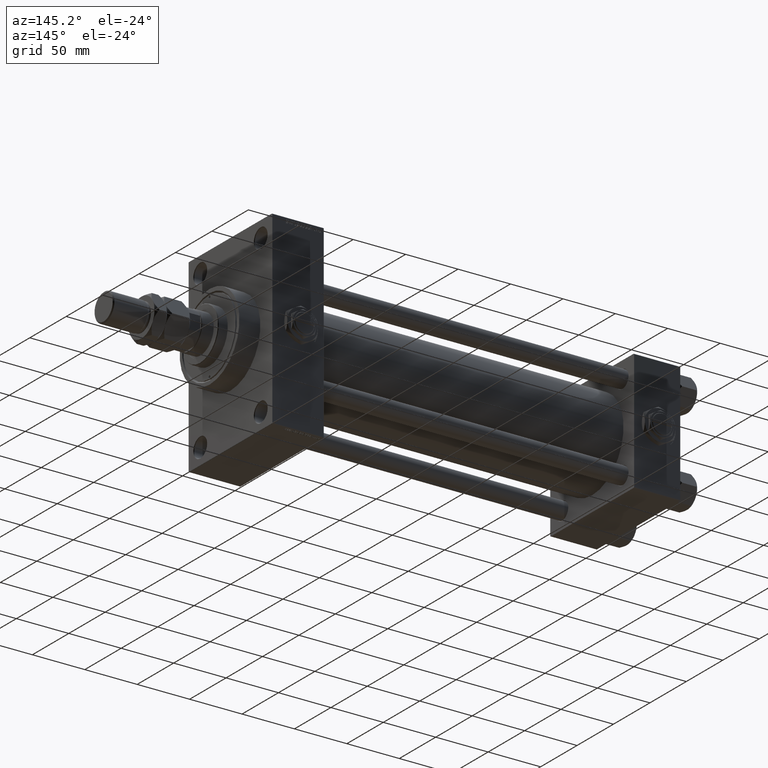
[diagram: clean part render]
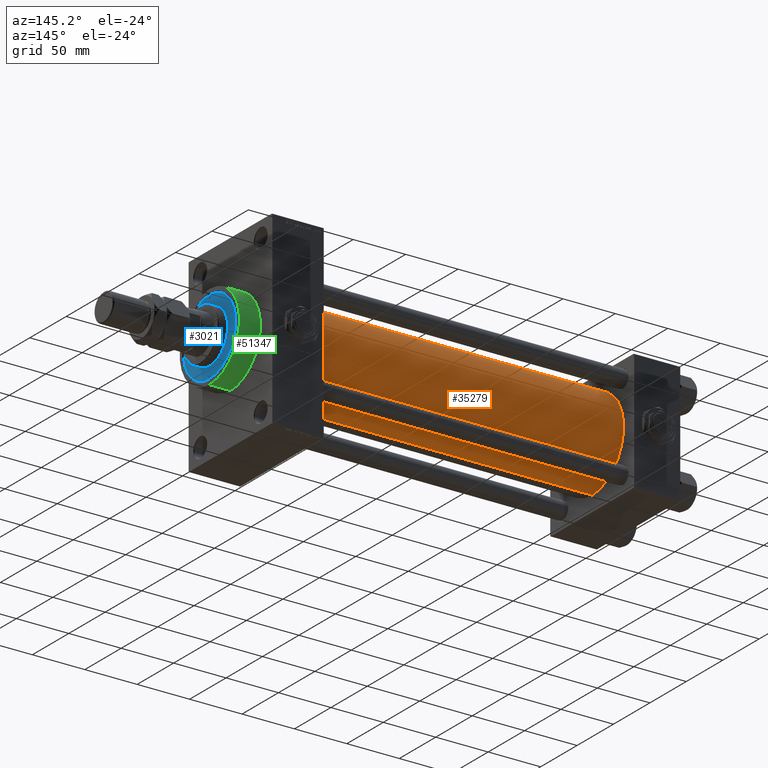
[diagram: same view with three faces highlighted in distinct colors, each labeled with its STEP entity id]
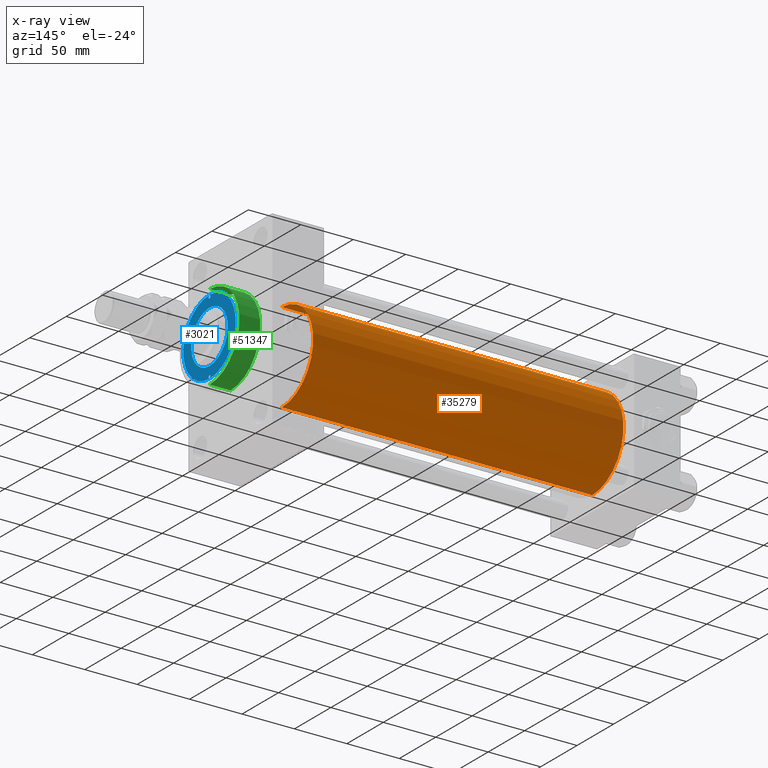
[diagram: x-ray of the same camera — body ghosted, the three highlighted faces saturated]
A machine part, auxiliary view with three faces highlighted in distinct colors.
The next image is the same camera in x-ray (body ghosted, the three faces saturated) — at least one of them is partly hidden behind the body in this view.
Their STEP definitions:

[orange] entity #35279 — the highlighted cylindrical surface (partial cylindrical patch) has radius 43 mm, axis along (-1, -0, -0).
#2613 = CARTESIAN_POINT ( 'NONE',  ( 43.99999999999998579, 2.663896022368408223E-15, -43.00000000000000000 ) ) ;
#3057 = CIRCLE ( 'NONE', #43057, 43.00000000000000000 ) ;
#5343 = AXIS2_PLACEMENT_3D ( 'NONE', #9457, #41325, #37419 ) ;
#5698 = DIRECTION ( 'NONE',  ( 1.000000000000000000, -0.000000000000000000, 0.000000000000000000 ) ) ;
#7799 = CIRCLE ( 'NONE', #14484, 43.00000000000000000 ) ;
#7990 = ORIENTED_EDGE ( 'NONE', *, *, #22632, .T. ) ;
#9457 = CARTESIAN_POINT ( 'NONE',  ( 339.9999999999999432, -2.602085213965210642E-15, 0.000000000000000000 ) ) ;
#10236 = EDGE_CURVE ( 'NONE', #44951, #35347, #7799, .T. ) ;
#12001 = EDGE_CURVE ( 'NONE', #35347, #50280, #26509, .T. ) ;
#12636 = EDGE_LOOP ( 'NONE', ( #24867, #13989, #7990, #48971 ) ) ;
#13118 = CYLINDRICAL_SURFACE ( 'NONE', #5343, 43.00000000000000000 ) ;
#13267 = CARTESIAN_POINT ( 'NONE',  ( 43.99999999999998579, -2.602085213965210642E-15, 0.000000000000000000 ) ) ;
#13989 = ORIENTED_EDGE ( 'NONE', *, *, #51068, .T. ) ;
#14484 = AXIS2_PLACEMENT_3D ( 'NONE', #30294, #45709, #49594 ) ;
#16563 = VERTEX_POINT ( 'NONE', #2613 ) ;
#18656 = DIRECTION ( 'NONE',  ( -1.000000000000000000, -0.000000000000000000, -0.000000000000000000 ) ) ;
#19999 = VECTOR ( 'NONE', #25579, 1000.000000000000000 ) ;
#21636 = DIRECTION ( 'NONE',  ( 0.000000000000000000, 0.000000000000000000, 1.000000000000000000 ) ) ;
#22632 = EDGE_CURVE ( 'NONE', #16563, #50280, #3057, .T. ) ;
#23951 = CARTESIAN_POINT ( 'NONE',  ( 43.99999999999998579, -2.602085213965210642E-15, 43.00000000000000000 ) ) ;
#24867 = ORIENTED_EDGE ( 'NONE', *, *, #10236, .F. ) ;
#25579 = DIRECTION ( 'NONE',  ( -1.000000000000000000, -0.000000000000000000, -0.000000000000000000 ) ) ;
#26509 = LINE ( 'NONE', #37498, #46942 ) ;
#29254 = LINE ( 'NONE', #41246, #19999 ) ;
#30294 = CARTESIAN_POINT ( 'NONE',  ( 339.9999999999999432, -2.602085213965210642E-15, 0.000000000000000000 ) ) ;
#32975 = FACE_OUTER_BOUND ( 'NONE', #12636, .T. ) ;
#35279 = ADVANCED_FACE ( 'NONE', ( #32975 ), #13118, .T. ) ;
#35347 = VERTEX_POINT ( 'NONE', #41592 ) ;
#37419 = DIRECTION ( 'NONE',  ( 0.000000000000000000, 0.000000000000000000, 1.000000000000000000 ) ) ;
#37498 = CARTESIAN_POINT ( 'NONE',  ( 339.9999999999999432, -2.602085213965210642E-15, 43.00000000000000000 ) ) ;
#39960 = CARTESIAN_POINT ( 'NONE',  ( 339.9999999999999432, 2.663896022368408223E-15, -43.00000000000000000 ) ) ;
#41246 = CARTESIAN_POINT ( 'NONE',  ( 339.9999999999999432, 2.663896022368408223E-15, -43.00000000000000000 ) ) ;
#41325 = DIRECTION ( 'NONE',  ( -1.000000000000000000, -0.000000000000000000, -0.000000000000000000 ) ) ;
#41592 = CARTESIAN_POINT ( 'NONE',  ( 339.9999999999999432, -2.602085213965210642E-15, 43.00000000000000000 ) ) ;
#43057 = AXIS2_PLACEMENT_3D ( 'NONE', #13267, #5698, #21636 ) ;
#44951 = VERTEX_POINT ( 'NONE', #39960 ) ;
#45709 = DIRECTION ( 'NONE',  ( 1.000000000000000000, 0.000000000000000000, 0.000000000000000000 ) ) ;
#46942 = VECTOR ( 'NONE', #18656, 1000.000000000000000 ) ;
#48971 = ORIENTED_EDGE ( 'NONE', *, *, #12001, .F. ) ;
#49594 = DIRECTION ( 'NONE',  ( 0.000000000000000000, 0.000000000000000000, -1.000000000000000000 ) ) ;
#50280 = VERTEX_POINT ( 'NONE', #23951 ) ;
#51068 = EDGE_CURVE ( 'NONE', #44951, #16563, #29254, .T. ) ;

[blue] entity #3021 — the highlighted planar face has unit normal (1, -0, -0).
#623 = EDGE_CURVE ( 'NONE', #41799, #8951, #49861, .T. ) ;
#1778 = VERTEX_POINT ( 'NONE', #22129 ) ;
#1958 = EDGE_LOOP ( 'NONE', ( #4380, #46746 ) ) ;
#2252 = CIRCLE ( 'NONE', #33991, 1.250000000000001110 ) ;
#2486 = CARTESIAN_POINT ( 'NONE',  ( 36.00000000000000000, 4.408728476930470856E-15, 43.25999999999999801 ) ) ;
#2545 = FACE_BOUND ( 'NONE', #25171, .T. ) ;
#3021 = ADVANCED_FACE ( 'NONE', ( #22405, #41739, #2545, #21889 ), #33387, .T. ) ;
#4380 = ORIENTED_EDGE ( 'NONE', *, *, #32821, .F. ) ;
#4521 = EDGE_CURVE ( 'NONE', #48052, #8238, #10032, .T. ) ;
#6853 = DIRECTION ( 'NONE',  ( 0.000000000000000000, 0.000000000000000000, 1.000000000000000000 ) ) ;
#7746 = EDGE_LOOP ( 'NONE', ( #32919, #24934 ) ) ;
#8238 = VERTEX_POINT ( 'NONE', #27636 ) ;
#8951 = VERTEX_POINT ( 'NONE', #36891 ) ;
#9217 = DIRECTION ( 'NONE',  ( 1.000000000000000000, 0.000000000000000000, 0.000000000000000000 ) ) ;
#10032 = CIRCLE ( 'NONE', #16653, 25.00000000000000000 ) ;
#11217 = EDGE_CURVE ( 'NONE', #8238, #48052, #12717, .T. ) ;
#12717 = CIRCLE ( 'NONE', #41940, 25.00000000000000000 ) ;
#13244 = DIRECTION ( 'NONE',  ( 0.000000000000000000, 0.000000000000000000, 1.000000000000000000 ) ) ;
#13436 = CIRCLE ( 'NONE', #20110, 1.250000000000001110 ) ;
#13528 = DIRECTION ( 'NONE',  ( 0.000000000000000000, 0.000000000000000000, 1.000000000000000000 ) ) ;
#13681 = DIRECTION ( 'NONE',  ( 0.000000000000000000, 0.000000000000000000, 1.000000000000000000 ) ) ;
#14368 = DIRECTION ( 'NONE',  ( -0.000000000000000000, -0.000000000000000000, 1.000000000000000000 ) ) ;
#14878 = DIRECTION ( 'NONE',  ( -0.000000000000000000, -0.000000000000000000, 1.000000000000000000 ) ) ;
#15097 = CIRCLE ( 'NONE', #44301, 1.250000000000001110 ) ;
#15277 = AXIS2_PLACEMENT_3D ( 'NONE', #49017, #13244, #45122 ) ;
#16015 = CARTESIAN_POINT ( 'NONE',  ( 34.25000000000000000, 0.000000000000000000, 43.25999999999999801 ) ) ;
#16129 = CARTESIAN_POINT ( 'NONE',  ( -34.25000000000000000, 0.000000000000000000, 43.25999999999999801 ) ) ;
#16653 = AXIS2_PLACEMENT_3D ( 'NONE', #18116, #13681, #41370 ) ;
#18116 = CARTESIAN_POINT ( 'NONE',  ( 0.000000000000000000, 0.000000000000000000, 43.25999999999999801 ) ) ;
#19623 = ORIENTED_EDGE ( 'NONE', *, *, #11217, .F. ) ;
#20110 = AXIS2_PLACEMENT_3D ( 'NONE', #48864, #14368, #46229 ) ;
#20308 = CIRCLE ( 'NONE', #15277, 36.00000000000000000 ) ;
#20530 = CIRCLE ( 'NONE', #29722, 36.00000000000000000 ) ;
#20895 = EDGE_CURVE ( 'NONE', #1778, #29868, #2252, .T. ) ;
#21889 = FACE_OUTER_BOUND ( 'NONE', #49499, .T. ) ;
#22129 = CARTESIAN_POINT ( 'NONE',  ( 35.50000000000000711, 0.000000000000000000, 43.25999999999999801 ) ) ;
#22405 = FACE_BOUND ( 'NONE', #1958, .T. ) ;
#22773 = CARTESIAN_POINT ( 'NONE',  ( -36.00000000000000000, 0.000000000000000000, 43.25999999999999801 ) ) ;
#23478 = CARTESIAN_POINT ( 'NONE',  ( -35.50000000000000711, 1.530808498934193050E-16, 43.25999999999999801 ) ) ;
#24830 = ORIENTED_EDGE ( 'NONE', *, *, #4521, .F. ) ;
#24934 = ORIENTED_EDGE ( 'NONE', *, *, #32825, .F. ) ;
#25171 = EDGE_LOOP ( 'NONE', ( #19623, #24830 ) ) ;
#26394 = DIRECTION ( 'NONE',  ( 1.000000000000000000, 0.000000000000000000, 0.000000000000000000 ) ) ;
#27636 = CARTESIAN_POINT ( 'NONE',  ( -25.00000000000000000, 0.000000000000000000, 43.25999999999999801 ) ) ;
#29480 = DIRECTION ( 'NONE',  ( 1.000000000000000000, 0.000000000000000000, -0.000000000000000000 ) ) ;
#29722 = AXIS2_PLACEMENT_3D ( 'NONE', #30905, #6853, #46559 ) ;
#29868 = VERTEX_POINT ( 'NONE', #50596 ) ;
#30077 = CARTESIAN_POINT ( 'NONE',  ( 25.00000000000000000, 3.061616997868383043E-15, 43.25999999999999801 ) ) ;
#30905 = CARTESIAN_POINT ( 'NONE',  ( 0.000000000000000000, 0.000000000000000000, 43.25999999999999801 ) ) ;
#31551 = DIRECTION ( 'NONE',  ( -0.000000000000000000, -0.000000000000000000, 1.000000000000000000 ) ) ;
#32592 = ORIENTED_EDGE ( 'NONE', *, *, #43710, .T. ) ;
#32821 = EDGE_CURVE ( 'NONE', #8951, #41799, #13436, .T. ) ;
#32825 = EDGE_CURVE ( 'NONE', #29868, #1778, #15097, .T. ) ;
#32919 = ORIENTED_EDGE ( 'NONE', *, *, #20895, .F. ) ;
#33232 = AXIS2_PLACEMENT_3D ( 'NONE', #16129, #31551, #47464 ) ;
#33259 = CARTESIAN_POINT ( 'NONE',  ( 0.000000000000000000, 0.000000000000000000, 43.25999999999999801 ) ) ;
#33387 = PLANE ( 'NONE',  #45794 ) ;
#33991 = AXIS2_PLACEMENT_3D ( 'NONE', #16015, #43192, #39513 ) ;
#34732 = EDGE_CURVE ( 'NONE', #36236, #42582, #20308, .T. ) ;
#36058 = ORIENTED_EDGE ( 'NONE', *, *, #34732, .T. ) ;
#36236 = VERTEX_POINT ( 'NONE', #22773 ) ;
#36891 = CARTESIAN_POINT ( 'NONE',  ( -33.00000000000000000, 0.000000000000000000, 43.25999999999999801 ) ) ;
#39513 = DIRECTION ( 'NONE',  ( 1.000000000000000000, 0.000000000000000000, 0.000000000000000000 ) ) ;
#40827 = DIRECTION ( 'NONE',  ( 0.000000000000000000, 0.000000000000000000, 1.000000000000000000 ) ) ;
#41370 = DIRECTION ( 'NONE',  ( 1.000000000000000000, 0.000000000000000000, 0.000000000000000000 ) ) ;
#41739 = FACE_BOUND ( 'NONE', #7746, .T. ) ;
#41799 = VERTEX_POINT ( 'NONE', #23478 ) ;
#41940 = AXIS2_PLACEMENT_3D ( 'NONE', #33259, #40827, #9217 ) ;
#42582 = VERTEX_POINT ( 'NONE', #2486 ) ;
#43192 = DIRECTION ( 'NONE',  ( -0.000000000000000000, -0.000000000000000000, 1.000000000000000000 ) ) ;
#43710 = EDGE_CURVE ( 'NONE', #42582, #36236, #20530, .T. ) ;
#44301 = AXIS2_PLACEMENT_3D ( 'NONE', #50143, #14878, #26394 ) ;
#45122 = DIRECTION ( 'NONE',  ( 1.000000000000000000, 0.000000000000000000, 0.000000000000000000 ) ) ;
#45794 = AXIS2_PLACEMENT_3D ( 'NONE', #49299, #13528, #29480 ) ;
#46229 = DIRECTION ( 'NONE',  ( 1.000000000000000000, 0.000000000000000000, 0.000000000000000000 ) ) ;
#46559 = DIRECTION ( 'NONE',  ( 1.000000000000000000, 0.000000000000000000, 0.000000000000000000 ) ) ;
#46746 = ORIENTED_EDGE ( 'NONE', *, *, #623, .F. ) ;
#47464 = DIRECTION ( 'NONE',  ( 1.000000000000000000, 0.000000000000000000, 0.000000000000000000 ) ) ;
#48052 = VERTEX_POINT ( 'NONE', #30077 ) ;
#48864 = CARTESIAN_POINT ( 'NONE',  ( -34.25000000000000000, 0.000000000000000000, 43.25999999999999801 ) ) ;
#49017 = CARTESIAN_POINT ( 'NONE',  ( 0.000000000000000000, 0.000000000000000000, 43.25999999999999801 ) ) ;
#49299 = CARTESIAN_POINT ( 'NONE',  ( 0.000000000000000000, 0.000000000000000000, 43.25999999999999801 ) ) ;
#49499 = EDGE_LOOP ( 'NONE', ( #36058, #32592 ) ) ;
#49861 = CIRCLE ( 'NONE', #33232, 1.250000000000001110 ) ;
#50143 = CARTESIAN_POINT ( 'NONE',  ( 34.25000000000000000, 0.000000000000000000, 43.25999999999999801 ) ) ;
#50596 = CARTESIAN_POINT ( 'NONE',  ( 33.00000000000000000, 1.530808498934193050E-16, 43.25999999999999801 ) ) ;

[green] entity #51347 — the highlighted cylindrical surface (partial cylindrical patch) has radius 41 mm, axis along (-1, -0, -0).
#1167 = ORIENTED_EDGE ( 'NONE', *, *, #15281, .T. ) ;
#5667 = EDGE_CURVE ( 'NONE', #38201, #41603, #43457, .T. ) ;
#11031 = CARTESIAN_POINT ( 'NONE',  ( 409.0000000000000000, 0.000000000000000000, 0.000000000000000000 ) ) ;
#13359 = CIRCLE ( 'NONE', #50060, 41.00000000000000000 ) ;
#14075 = DIRECTION ( 'NONE',  ( 0.000000000000000000, 0.000000000000000000, -1.000000000000000000 ) ) ;
#15281 = EDGE_CURVE ( 'NONE', #41603, #30109, #25416, .T. ) ;
#15932 = VECTOR ( 'NONE', #39800, 1000.000000000000000 ) ;
#17643 = VERTEX_POINT ( 'NONE', #29988 ) ;
#18130 = EDGE_LOOP ( 'NONE', ( #21171, #22714, #1167, #20676 ) ) ;
#20676 = ORIENTED_EDGE ( 'NONE', *, *, #32464, .F. ) ;
#20832 = AXIS2_PLACEMENT_3D ( 'NONE', #11031, #43164, #34818 ) ;
#21171 = ORIENTED_EDGE ( 'NONE', *, *, #30645, .F. ) ;
#22714 = ORIENTED_EDGE ( 'NONE', *, *, #5667, .T. ) ;
#23058 = CYLINDRICAL_SURFACE ( 'NONE', #20832, 41.00000000000000000 ) ;
#24125 = DIRECTION ( 'NONE',  ( -1.000000000000000000, -0.000000000000000000, -0.000000000000000000 ) ) ;
#25416 = CIRCLE ( 'NONE', #30416, 41.00000000000000000 ) ;
#27812 = CARTESIAN_POINT ( 'NONE',  ( 409.0000000000000000, 0.000000000000000000, 41.00000000000000000 ) ) ;
#29988 = CARTESIAN_POINT ( 'NONE',  ( 409.0000000000000000, 0.000000000000000000, 41.00000000000000000 ) ) ;
#30109 = VERTEX_POINT ( 'NONE', #46382 ) ;
#30416 = AXIS2_PLACEMENT_3D ( 'NONE', #40309, #40050, #35883 ) ;
#30645 = EDGE_CURVE ( 'NONE', #38201, #17643, #13359, .T. ) ;
#31707 = CARTESIAN_POINT ( 'NONE',  ( 409.0000000000000000, 5.021051876504148963E-15, -41.00000000000000000 ) ) ;
#31733 = CARTESIAN_POINT ( 'NONE',  ( 409.0000000000000000, 5.021051876504148963E-15, -41.00000000000000000 ) ) ;
#32464 = EDGE_CURVE ( 'NONE', #17643, #30109, #47630, .T. ) ;
#33419 = DIRECTION ( 'NONE',  ( 1.000000000000000000, 0.000000000000000000, 0.000000000000000000 ) ) ;
#34818 = DIRECTION ( 'NONE',  ( 0.000000000000000000, 0.000000000000000000, 1.000000000000000000 ) ) ;
#35083 = FACE_OUTER_BOUND ( 'NONE', #18130, .T. ) ;
#35883 = DIRECTION ( 'NONE',  ( 0.000000000000000000, 0.000000000000000000, -1.000000000000000000 ) ) ;
#38201 = VERTEX_POINT ( 'NONE', #31733 ) ;
#39800 = DIRECTION ( 'NONE',  ( -1.000000000000000000, -0.000000000000000000, -0.000000000000000000 ) ) ;
#40050 = DIRECTION ( 'NONE',  ( 1.000000000000000000, 0.000000000000000000, 0.000000000000000000 ) ) ;
#40309 = CARTESIAN_POINT ( 'NONE',  ( 388.9999999999999432, 0.000000000000000000, 0.000000000000000000 ) ) ;
#41603 = VERTEX_POINT ( 'NONE', #49104 ) ;
#42575 = VECTOR ( 'NONE', #24125, 1000.000000000000000 ) ;
#43164 = DIRECTION ( 'NONE',  ( -1.000000000000000000, -0.000000000000000000, -0.000000000000000000 ) ) ;
#43457 = LINE ( 'NONE', #31707, #42575 ) ;
#46382 = CARTESIAN_POINT ( 'NONE',  ( 388.9999999999999432, 0.000000000000000000, 41.00000000000000000 ) ) ;
#47630 = LINE ( 'NONE', #27812, #15932 ) ;
#49104 = CARTESIAN_POINT ( 'NONE',  ( 388.9999999999999432, 5.021051876504148963E-15, -41.00000000000000000 ) ) ;
#49838 = CARTESIAN_POINT ( 'NONE',  ( 409.0000000000000000, 0.000000000000000000, 0.000000000000000000 ) ) ;
#50060 = AXIS2_PLACEMENT_3D ( 'NONE', #49838, #33419, #14075 ) ;
#51347 = ADVANCED_FACE ( 'NONE', ( #35083 ), #23058, .T. ) ;